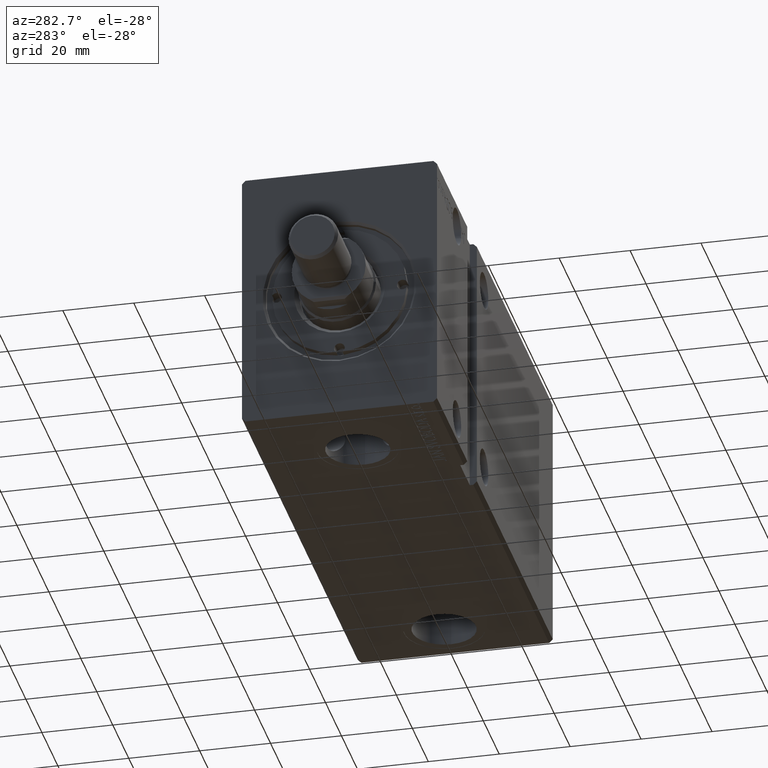
[diagram: clean part render]
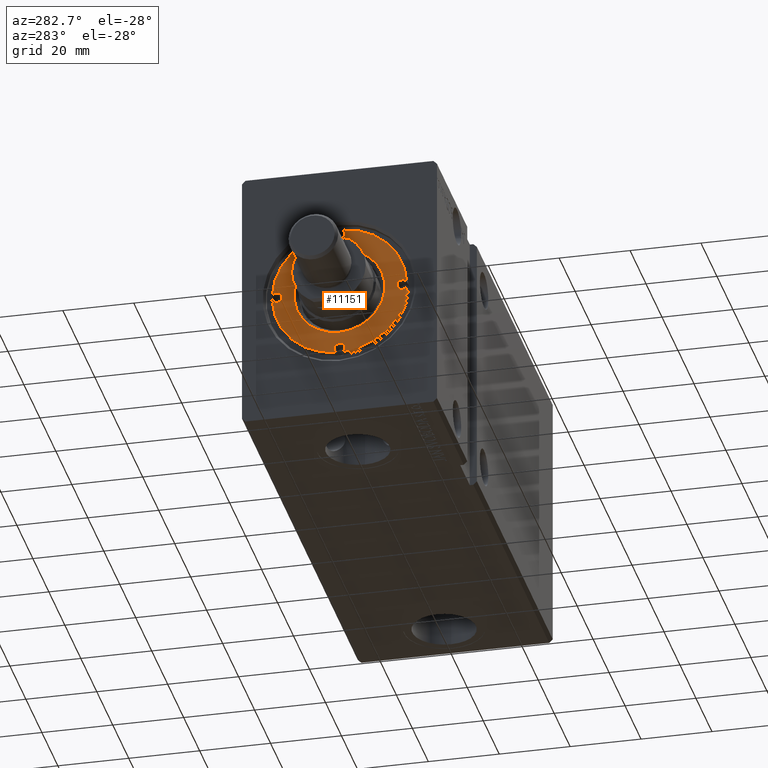
[diagram: same view with one face highlighted and labeled with its STEP entity id]
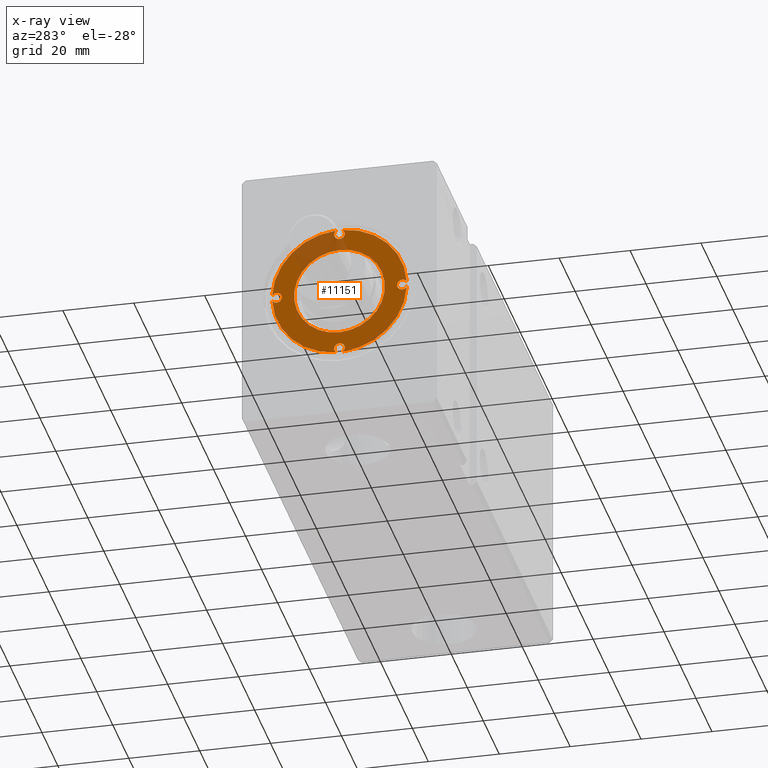
[diagram: x-ray of the same camera — body ghosted, the highlighted face saturated]
A machine part, auxiliary view. The second image highlights one B-rep face of the part: STEP entity #11151.
The next image is the same camera in x-ray: the body ghosted, the highlighted face saturated — about 15% of this face is hidden behind the body in this view.
In plain terms, the highlighted planar face has unit normal (-1, 0, 0).
Its self-contained STEP definition (entity closure, byte-faithful):
#42 = CARTESIAN_POINT ( 'NONE',  ( 0.000000000000000000, -17.75000000000000000, 11.79999999999999893 ) ) ;
#360 = CIRCLE ( 'NONE', #30070, 1.499999999999996891 ) ;
#743 = CIRCLE ( 'NONE', #1385, 19.00000000000000000 ) ;
#1030 = DIRECTION ( 'NONE',  ( 1.000000000000000000, 0.000000000000000000, 0.000000000000000000 ) ) ;
#1067 = CARTESIAN_POINT ( 'NONE',  ( 0.000000000000000000, 0.000000000000000000, 11.79999999999999893 ) ) ;
#1127 = DIRECTION ( 'NONE',  ( -0.000000000000000000, -0.000000000000000000, 1.000000000000000000 ) ) ;
#1385 = AXIS2_PLACEMENT_3D ( 'NONE', #32092, #28458, #7043 ) ;
#1844 = CIRCLE ( 'NONE', #12806, 1.499999999999997780 ) ;
#1940 = CARTESIAN_POINT ( 'NONE',  ( 17.75000000000000000, 0.000000000000000000, 11.79999999999999893 ) ) ;
#2111 = DIRECTION ( 'NONE',  ( 1.000000000000000000, 0.000000000000000000, 0.000000000000000000 ) ) ;
#2607 = CARTESIAN_POINT ( 'NONE',  ( 18.98063380281688950, -0.8576365450261710377, 11.79999999999999893 ) ) ;
#2643 = CARTESIAN_POINT ( 'NONE',  ( 0.000000000000000000, 0.000000000000000000, 11.79999999999999893 ) ) ;
#2998 = CARTESIAN_POINT ( 'NONE',  ( -12.79999999999997407, 1.567547902908609029E-15, 11.79999999999999893 ) ) ;
#3139 = CARTESIAN_POINT ( 'NONE',  ( -1.499999999999996891, -17.75000000000000000, 11.79999999999999893 ) ) ;
#3626 = EDGE_CURVE ( 'NONE', #25782, #10710, #17211, .T. ) ;
#3671 = DIRECTION ( 'NONE',  ( -0.000000000000000000, -0.000000000000000000, 1.000000000000000000 ) ) ;
#3852 = VERTEX_POINT ( 'NONE', #9661 ) ;
#3965 = EDGE_LOOP ( 'NONE', ( #17402, #20438 ) ) ;
#4277 = CARTESIAN_POINT ( 'NONE',  ( 0.000000000000000000, 17.75000000000000000, 11.79999999999999893 ) ) ;
#4439 = AXIS2_PLACEMENT_3D ( 'NONE', #27738, #24093, #18810 ) ;
#4586 = DIRECTION ( 'NONE',  ( -0.000000000000000000, -0.000000000000000000, 1.000000000000000000 ) ) ;
#4655 = DIRECTION ( 'NONE',  ( 1.000000000000000000, 0.000000000000000000, 0.000000000000000000 ) ) ;
#5748 = EDGE_CURVE ( 'NONE', #38908, #25607, #17927, .T. ) ;
#6165 = CARTESIAN_POINT ( 'NONE',  ( 16.25000000000000000, 1.836970198721027222E-16, 11.79999999999999893 ) ) ;
#6188 = ORIENTED_EDGE ( 'NONE', *, *, #38502, .F. ) ;
#6924 = ORIENTED_EDGE ( 'NONE', *, *, #35723, .T. ) ;
#7036 = EDGE_CURVE ( 'NONE', #7598, #19331, #9046, .T. ) ;
#7043 = DIRECTION ( 'NONE',  ( 1.000000000000000000, 0.000000000000000000, 0.000000000000000000 ) ) ;
#7066 = DIRECTION ( 'NONE',  ( -0.000000000000000000, -0.000000000000000000, -1.000000000000000000 ) ) ;
#7598 = VERTEX_POINT ( 'NONE', #2998 ) ;
#7878 = CARTESIAN_POINT ( 'NONE',  ( 17.75000000000000000, 0.000000000000000000, 11.79999999999999893 ) ) ;
#8000 = CARTESIAN_POINT ( 'NONE',  ( 0.000000000000000000, 17.75000000000000000, 11.79999999999999893 ) ) ;
#8133 = EDGE_CURVE ( 'NONE', #39647, #32865, #11072, .T. ) ;
#8198 = AXIS2_PLACEMENT_3D ( 'NONE', #7878, #32312, #4655 ) ;
#8326 = DIRECTION ( 'NONE',  ( 1.000000000000000000, 0.000000000000000000, 0.000000000000000000 ) ) ;
#8664 = DIRECTION ( 'NONE',  ( 0.000000000000000000, 0.000000000000000000, 1.000000000000000000 ) ) ;
#8769 = AXIS2_PLACEMENT_3D ( 'NONE', #1940, #29015, #13649 ) ;
#8883 = CIRCLE ( 'NONE', #19167, 19.00000000000000000 ) ;
#9046 = CIRCLE ( 'NONE', #36120, 12.79999999999997407 ) ;
#9652 = DIRECTION ( 'NONE',  ( 0.000000000000000000, 0.000000000000000000, 1.000000000000000000 ) ) ;
#9661 = CARTESIAN_POINT ( 'NONE',  ( -16.25000000000000000, 0.000000000000000000, 11.79999999999999893 ) ) ;
#9712 = VERTEX_POINT ( 'NONE', #2607 ) ;
#10057 = ORIENTED_EDGE ( 'NONE', *, *, #37900, .F. ) ;
#10094 = CARTESIAN_POINT ( 'NONE',  ( 0.000000000000000000, 0.000000000000000000, 11.79999999999999893 ) ) ;
#10250 = CIRCLE ( 'NONE', #14148, 19.00000000000000000 ) ;
#10710 = VERTEX_POINT ( 'NONE', #6165 ) ;
#11072 = CIRCLE ( 'NONE', #31074, 1.499999999999996891 ) ;
#11151 = ADVANCED_FACE ( 'NONE', ( #27139, #11768 ), #24697, .T. ) ;
#11768 = FACE_BOUND ( 'NONE', #3965, .T. ) ;
#11922 = DIRECTION ( 'NONE',  ( 1.000000000000000000, 0.000000000000000000, 0.000000000000000000 ) ) ;
#12077 = CARTESIAN_POINT ( 'NONE',  ( 0.000000000000000000, 0.000000000000000000, 11.79999999999999893 ) ) ;
#12432 = CARTESIAN_POINT ( 'NONE',  ( 1.499999999999996891, 17.75000000000000000, 11.79999999999999893 ) ) ;
#12806 = AXIS2_PLACEMENT_3D ( 'NONE', #13643, #1127, #38314 ) ;
#12884 = ORIENTED_EDGE ( 'NONE', *, *, #30786, .F. ) ;
#12937 = DIRECTION ( 'NONE',  ( 1.000000000000000000, 0.000000000000000000, 0.000000000000000000 ) ) ;
#13213 = CIRCLE ( 'NONE', #29980, 12.79999999999997407 ) ;
#13241 = EDGE_CURVE ( 'NONE', #3852, #15228, #34788, .T. ) ;
#13243 = AXIS2_PLACEMENT_3D ( 'NONE', #1067, #22676, #28952 ) ;
#13627 = EDGE_CURVE ( 'NONE', #32865, #38908, #14312, .T. ) ;
#13643 = CARTESIAN_POINT ( 'NONE',  ( -17.75000000000000000, 0.000000000000000000, 11.79999999999999893 ) ) ;
#13649 = DIRECTION ( 'NONE',  ( 1.000000000000000000, 0.000000000000000000, 0.000000000000000000 ) ) ;
#14043 = ORIENTED_EDGE ( 'NONE', *, *, #5748, .F. ) ;
#14086 = EDGE_CURVE ( 'NONE', #32265, #15228, #743, .T. ) ;
#14087 = CARTESIAN_POINT ( 'NONE',  ( 18.98063380281688950, 0.8576365450261742573, 11.79999999999999893 ) ) ;
#14148 = AXIS2_PLACEMENT_3D ( 'NONE', #12077, #8664, #20968 ) ;
#14312 = CIRCLE ( 'NONE', #23344, 1.499999999999996891 ) ;
#14370 = CARTESIAN_POINT ( 'NONE',  ( 0.000000000000000000, 17.75000000000000000, 11.79999999999999893 ) ) ;
#14770 = DIRECTION ( 'NONE',  ( -0.000000000000000000, -0.000000000000000000, 1.000000000000000000 ) ) ;
#15228 = VERTEX_POINT ( 'NONE', #26403 ) ;
#15265 = DIRECTION ( 'NONE',  ( 1.000000000000000000, 0.000000000000000000, 0.000000000000000000 ) ) ;
#15594 = CARTESIAN_POINT ( 'NONE',  ( -0.8576365450261700385, 18.98063380281688950, 11.79999999999999893 ) ) ;
#15659 = ORIENTED_EDGE ( 'NONE', *, *, #13627, .F. ) ;
#16210 = ORIENTED_EDGE ( 'NONE', *, *, #39663, .T. ) ;
#16221 = CARTESIAN_POINT ( 'NONE',  ( -1.499999999999996891, 17.75000000000000000, 11.79999999999999893 ) ) ;
#17211 = CIRCLE ( 'NONE', #8198, 1.499999999999997780 ) ;
#17402 = ORIENTED_EDGE ( 'NONE', *, *, #28340, .T. ) ;
#17927 = CIRCLE ( 'NONE', #32760, 1.499999999999996891 ) ;
#18810 = DIRECTION ( 'NONE',  ( 1.000000000000000000, 0.000000000000000000, -0.000000000000000000 ) ) ;
#19083 = CARTESIAN_POINT ( 'NONE',  ( -18.98063380281689305, -0.8576365450261700385, 11.79999999999999893 ) ) ;
#19129 = ORIENTED_EDGE ( 'NONE', *, *, #26005, .T. ) ;
#19167 = AXIS2_PLACEMENT_3D ( 'NONE', #2643, #9652, #11922 ) ;
#19331 = VERTEX_POINT ( 'NONE', #24843 ) ;
#19734 = CARTESIAN_POINT ( 'NONE',  ( -0.8576365450261562717, -18.98063380281690016, 11.79999999999999893 ) ) ;
#20306 = DIRECTION ( 'NONE',  ( 1.000000000000000000, 0.000000000000000000, 0.000000000000000000 ) ) ;
#20438 = ORIENTED_EDGE ( 'NONE', *, *, #7036, .T. ) ;
#20499 = CARTESIAN_POINT ( 'NONE',  ( -17.75000000000000000, 0.000000000000000000, 11.79999999999999893 ) ) ;
#20641 = VERTEX_POINT ( 'NONE', #33544 ) ;
#20968 = DIRECTION ( 'NONE',  ( 1.000000000000000000, 0.000000000000000000, 0.000000000000000000 ) ) ;
#21645 = CIRCLE ( 'NONE', #13243, 19.00000000000000000 ) ;
#22216 = CIRCLE ( 'NONE', #27399, 1.499999999999996891 ) ;
#22676 = DIRECTION ( 'NONE',  ( 0.000000000000000000, 0.000000000000000000, 1.000000000000000000 ) ) ;
#23344 = AXIS2_PLACEMENT_3D ( 'NONE', #42, #24686, #12937 ) ;
#24093 = DIRECTION ( 'NONE',  ( 0.000000000000000000, 0.000000000000000000, 1.000000000000000000 ) ) ;
#24686 = DIRECTION ( 'NONE',  ( -0.000000000000000000, -0.000000000000000000, 1.000000000000000000 ) ) ;
#24697 = PLANE ( 'NONE',  #4439 ) ;
#24773 = VERTEX_POINT ( 'NONE', #12432 ) ;
#24843 = CARTESIAN_POINT ( 'NONE',  ( 12.79999999999997407, 0.000000000000000000, 11.79999999999999893 ) ) ;
#25371 = CARTESIAN_POINT ( 'NONE',  ( 1.499999999999996891, -17.75000000000000000, 11.79999999999999893 ) ) ;
#25607 = VERTEX_POINT ( 'NONE', #19734 ) ;
#25782 = VERTEX_POINT ( 'NONE', #14087 ) ;
#26005 = EDGE_CURVE ( 'NONE', #37683, #25607, #21645, .T. ) ;
#26184 = CIRCLE ( 'NONE', #8769, 1.499999999999997780 ) ;
#26403 = CARTESIAN_POINT ( 'NONE',  ( -18.98063380281688950, 0.8576365450261722589, 11.79999999999999893 ) ) ;
#26741 = DIRECTION ( 'NONE',  ( 1.000000000000000000, 0.000000000000000000, 0.000000000000000000 ) ) ;
#27003 = ORIENTED_EDGE ( 'NONE', *, *, #13241, .F. ) ;
#27025 = EDGE_CURVE ( 'NONE', #32265, #31936, #22216, .T. ) ;
#27122 = ORIENTED_EDGE ( 'NONE', *, *, #3626, .F. ) ;
#27139 = FACE_OUTER_BOUND ( 'NONE', #38990, .T. ) ;
#27399 = AXIS2_PLACEMENT_3D ( 'NONE', #14370, #14770, #8326 ) ;
#27738 = CARTESIAN_POINT ( 'NONE',  ( 0.000000000000000000, 0.000000000000000000, 11.79999999999999893 ) ) ;
#27819 = ORIENTED_EDGE ( 'NONE', *, *, #8133, .F. ) ;
#28340 = EDGE_CURVE ( 'NONE', #19331, #7598, #13213, .T. ) ;
#28458 = DIRECTION ( 'NONE',  ( 0.000000000000000000, 0.000000000000000000, 1.000000000000000000 ) ) ;
#28952 = DIRECTION ( 'NONE',  ( 1.000000000000000000, 0.000000000000000000, 0.000000000000000000 ) ) ;
#29015 = DIRECTION ( 'NONE',  ( -0.000000000000000000, -0.000000000000000000, 1.000000000000000000 ) ) ;
#29787 = DIRECTION ( 'NONE',  ( -0.000000000000000000, -0.000000000000000000, -1.000000000000000000 ) ) ;
#29980 = AXIS2_PLACEMENT_3D ( 'NONE', #39090, #29787, #2111 ) ;
#30065 = CARTESIAN_POINT ( 'NONE',  ( 0.8576365450261690393, -18.98063380281689305, 11.79999999999999893 ) ) ;
#30070 = AXIS2_PLACEMENT_3D ( 'NONE', #8000, #4586, #20306 ) ;
#30161 = DIRECTION ( 'NONE',  ( -0.000000000000000000, -0.000000000000000000, 1.000000000000000000 ) ) ;
#30193 = DIRECTION ( 'NONE',  ( 1.000000000000000000, 0.000000000000000000, 0.000000000000000000 ) ) ;
#30764 = EDGE_CURVE ( 'NONE', #10710, #9712, #26184, .T. ) ;
#30786 = EDGE_CURVE ( 'NONE', #31936, #24773, #360, .T. ) ;
#31074 = AXIS2_PLACEMENT_3D ( 'NONE', #38876, #30161, #26741 ) ;
#31684 = ORIENTED_EDGE ( 'NONE', *, *, #14086, .T. ) ;
#31936 = VERTEX_POINT ( 'NONE', #16221 ) ;
#32092 = CARTESIAN_POINT ( 'NONE',  ( 0.000000000000000000, 0.000000000000000000, 11.79999999999999893 ) ) ;
#32265 = VERTEX_POINT ( 'NONE', #15594 ) ;
#32312 = DIRECTION ( 'NONE',  ( -0.000000000000000000, -0.000000000000000000, 1.000000000000000000 ) ) ;
#32760 = AXIS2_PLACEMENT_3D ( 'NONE', #33259, #39534, #15265 ) ;
#32865 = VERTEX_POINT ( 'NONE', #25371 ) ;
#33259 = CARTESIAN_POINT ( 'NONE',  ( 0.000000000000000000, -17.75000000000000000, 11.79999999999999893 ) ) ;
#33514 = AXIS2_PLACEMENT_3D ( 'NONE', #20499, #36458, #30193 ) ;
#33544 = CARTESIAN_POINT ( 'NONE',  ( 0.8576365450261712597, 18.98063380281688950, 11.79999999999999893 ) ) ;
#34108 = CIRCLE ( 'NONE', #34739, 1.499999999999996891 ) ;
#34545 = DIRECTION ( 'NONE',  ( 1.000000000000000000, 0.000000000000000000, 0.000000000000000000 ) ) ;
#34739 = AXIS2_PLACEMENT_3D ( 'NONE', #4277, #3671, #1030 ) ;
#34788 = CIRCLE ( 'NONE', #33514, 1.499999999999997780 ) ;
#35723 = EDGE_CURVE ( 'NONE', #39647, #9712, #8883, .T. ) ;
#36120 = AXIS2_PLACEMENT_3D ( 'NONE', #10094, #7066, #34545 ) ;
#36458 = DIRECTION ( 'NONE',  ( -0.000000000000000000, -0.000000000000000000, 1.000000000000000000 ) ) ;
#37683 = VERTEX_POINT ( 'NONE', #19083 ) ;
#37900 = EDGE_CURVE ( 'NONE', #37683, #3852, #1844, .T. ) ;
#38314 = DIRECTION ( 'NONE',  ( 1.000000000000000000, 0.000000000000000000, 0.000000000000000000 ) ) ;
#38502 = EDGE_CURVE ( 'NONE', #24773, #20641, #34108, .T. ) ;
#38876 = CARTESIAN_POINT ( 'NONE',  ( 0.000000000000000000, -17.75000000000000000, 11.79999999999999893 ) ) ;
#38908 = VERTEX_POINT ( 'NONE', #3139 ) ;
#38945 = ORIENTED_EDGE ( 'NONE', *, *, #27025, .F. ) ;
#38990 = EDGE_LOOP ( 'NONE', ( #10057, #19129, #14043, #15659, #27819, #6924, #39434, #27122, #16210, #6188, #12884, #38945, #31684, #27003 ) ) ;
#39090 = CARTESIAN_POINT ( 'NONE',  ( 0.000000000000000000, 0.000000000000000000, 11.79999999999999893 ) ) ;
#39434 = ORIENTED_EDGE ( 'NONE', *, *, #30764, .F. ) ;
#39534 = DIRECTION ( 'NONE',  ( -0.000000000000000000, -0.000000000000000000, 1.000000000000000000 ) ) ;
#39647 = VERTEX_POINT ( 'NONE', #30065 ) ;
#39663 = EDGE_CURVE ( 'NONE', #25782, #20641, #10250, .T. ) ;